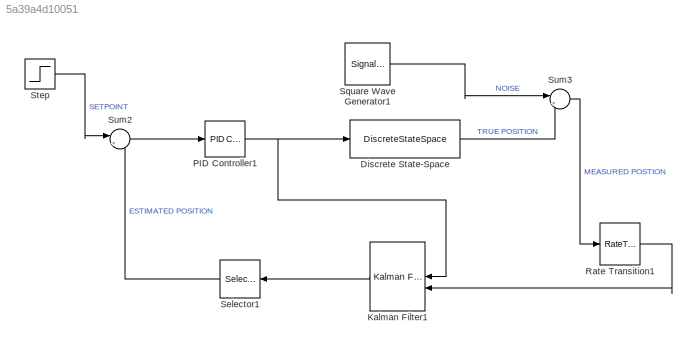
MODEL slx_5a39a4d10051
KIND model
CONFIG AbsTol = auto
CONFIG EnableMultiTasking = off
CONFIG FixedStep = auto
CONFIG MaxStep = auto
CONFIG MinStep = auto
CONFIG RelTol = 1e-3
CONFIG SampleTimeConstraint = Unconstrained
CONFIG SolverName = FixedStepAuto
CONFIG StartTime = 0.0
CONFIG StopTime = 5
BLOCK [DiscreteStateSpace] Discrete State-Space
  A = Ad
  B = Bd
  C = Cd
  D = 0
  SampleTime = 0.003
BLOCK [Reference] Kalman Filter1  REF=ctrlSharedLib/Kalman Filter
  LibrarySourceBlock = cstblocks/State Estimation/Kalman Filter
  SourceBlock = ctrlSharedLib/Kalman Filter
  SourceType = ctrlKalmanFilter
BLOCK [Reference] PID Controller1  REF=slpidlib/PID Controller
  LibrarySourceBlock = simulink/Continuous/PID Controller
  SourceBlock = slpidlib/PID Controller
  SourceType = PID 1dof
BLOCK [RateTransition] Rate Transition1
  OutPortSampleTime = 0.003
BLOCK [Selector] Selector1
  IndexOptions = Index vector (dialog)
  Indices = [1]
  InputPortWidth = 2
  OutputSizes = 1
BLOCK [SignalGenerator] Square Wave Generator1
  Amplitude = 0.5
  Frequency = 3
  NameLocation = left
  WaveForm = sawtooth
BLOCK [Step] Step
  After = 5
  SampleTime = 0
BLOCK [Sum] Sum2
  Inputs = |+-
BLOCK [Sum] Sum3
  Inputs = |++
LINE Discrete State-Space:1 -> Sum3:2
LINE Kalman Filter1:1 -> Selector1:1
NET PID Controller1:1 -> Discrete State-Space:1, Kalman Filter1:1
LINE Rate Transition1:1 -> Kalman Filter1:2
LINE Selector1:1 -> Sum2:2
LINE Square Wave Generator1:1 -> Sum3:1
LINE Step:1 -> Sum2:1
LINE Sum2:1 -> PID Controller1:1
LINE Sum3:1 -> Rate Transition1:1
note: NET lines group one-source signal fan-out (src -> all destinations, sorted); 1:1 wires keep LINE
